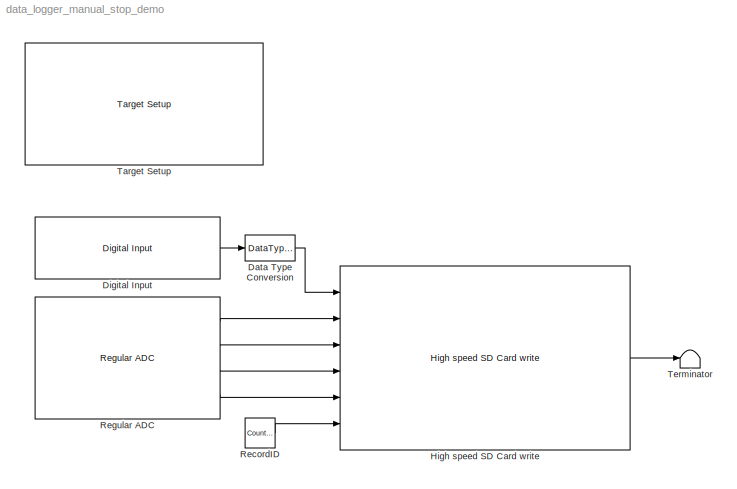
MODEL data_logger_manual_stop_demo
KIND model
CONFIG PreLoadFcn = waijung.modelPreload; % Required for working with Waijung Blockset. Do not remove.
BLOCK [DataTypeConversion] Data Type Conversion
  OutDataType = fixdt(1, 16)
  OutDataTypeMode = uint8
  OutDataTypeStr = uint8
  OutScaling = 2^0
  RndMeth = Floor
  SaturateOnIntegerOverflow = off
BLOCK [Reference] Digital Input  REF=stm32f4_io_lib/Digital Input
  Ports = [0, 1]
  SourceBlock = stm32f4_io_lib/Digital Input
  SourceType = stm32f4_digital_input
  bitbandingstr = \n#define DigitalInput_A0 Peripheral_BB(GPIOA->IDR, 0)  /* Output pin */
  blockid = DigitalInput
  cinputportlabel = In1, In2
  coutputportlabel = Out1, Out2
  enablecustomportlabel = off
  glabalinit = off
  pinstr = GPIO_Pin_0
  port = A
  porttype = None
  porttypestr = NOPULL
  sampletime = 0.01
  sampletimestr = 0.01
  speed = 100
  use_pin0 = on
  use_pin1 = off
  use_pin10 = off
  use_pin11 = off
  use_pin12 = off
  use_pin13 = off
  use_pin14 = off
  use_pin15 = off
  use_pin2 = off
  use_pin3 = off
  use_pin4 = off
  use_pin5 = off
  use_pin6 = off
  use_pin7 = off
  use_pin8 = off
  use_pin9 = off
  usedpinarray = [1  0  0  0  0  0  0  0  0  0  0  0  0  0  0  0]
BLOCK [Reference] High speed SD Card write  REF=stm32f4_sdio_lib/High speed SD Card write
  Ports = [6, 1]
  SourceBlock = stm32f4_sdio_lib/High speed SD Card write
  SourceType = stm32f4_hssdcard_write
  asciiformat = '%u,%f\\r\\n'
  asciiheader = Value1,Value2,value3\\n
  blockid = HighspeedSDCardwrite
  buffersize = 32768
  confstr = [\"262144000UL /* 256MB */\", \"128\"]
  datacount_double = 0
  datacount_float = 0
  datacount_int16_t = 0
  datacount_int32_t = 0
  datacount_int8_t = 0
  datacount_uint16_t = 4
  datacount_uint32_t = 1
  datacount_uint8_t = 0
  filesize = 12000000000
  gpio_pin_busy = 15
  gpio_pin_error = 14
  gpio_pin_success = 12
  gpio_sta_port = D
  inputtype = [6 3  5 5 5 5 7]
  limitsize = 250MB
  outputtype = [1 7]
  packetmode = Binary
  recordcount = 1000000000
  recordmode = Single
  recordsize = 12
  sampletime = -1
  sampletimestr = 1e-005
  sdoption = Format as FAT32 (Remove all existing files)
BLOCK [Reference] RecordID  REF=simulink/Sources/Counter\nFree-Running
  FunctionWithSeparateData = off
  NumBits = 32
  Ports = [0, 1]
  RTWMemSecDataConstants = Inherit from model
  RTWMemSecDataInternal = Inherit from model
  RTWMemSecDataParameters = Inherit from model
  RTWMemSecFuncExecute = Inherit from model
  RTWMemSecFuncInitTerm = Inherit from model
  ShowPortLabels = FromPortIcon
  SourceBlock = simulink/Sources/Counter\nFree-Running
  SourceType = Counter Free-Running
  SystemSampleTime = -1
  tsamp = -1
BLOCK [Reference] Regular ADC  REF=stm32f4_adc_lib/Regular ADC
  Ports = [0, 4]
  SourceBlock = stm32f4_adc_lib/Regular ADC
  SourceType = stm32f4_regular_adc
  adcmodule = 1
  blockid = RegularADC
  chsamplingtime = Auto
  chsamplingtimestr = ADC_SampleTime_480Cycles
  cinputportlabel = 0
  coutputportlabel = Out1, Out2
  enablecustomportlabel = off
  outputdatatype = Raw (uint16)
  pinstr = GPIO_Pin_4 | GPIO_Pin_5 | GPIO_Pin_6 | GPIO_Pin_7
  prescaler = 2
  prescalerstr = ADC_Prescaler_Div2
  read_an0 = off
  read_an1 = off
  read_an10 = off
  read_an11 = off
  read_an12 = off
  read_an13 = off
  read_an14 = off
  read_an15 = off
  read_an16 = off
  read_an17 = off
  read_an18 = off
  read_an2 = off
  read_an3 = off
  read_an4 = on
  read_an5 = on
  read_an6 = on
  read_an7 = on
  read_an8 = off
  read_an9 = off
  sampletime = 10e-6
  usedpinarray = [0  0  0  0  1  1  1  1  0  0  0  0  0  0  0  0  0  0  0]
  usedpinidarray = [4  5  6  7]
  usedpinidcount = 4
  usedportidarray = [0  0  0  0]
BLOCK [Reference] Target Setup  REF=stm32f4_device_config_lib/Target Setup
  Ports = []
  Priority = 100
  SourceBlock = stm32f4_device_config_lib/Target Setup
  SourceType = stm32f4_target_setup
  assemblercontrolstr = $(patsubst %, -I%, .) -mcpu=cortex-m4 -mthumb -mthumb-interwork -mfloat-abi=hard -mfpu=fpv4-sp-d16 -ffast-math -Wall -Wextra -Ofast -Wa,-amhls=$(<:.s=.lst) -D__STACK_SIZE=$(STACK_SIZE) -D__HEAP_SIZE=$(HEAP_SIZE)
  blockid = TargetSetup
  clockconfig = HSEOSC-8MHz
  compiler = GNU ARM
  compilercontrolstr = $(patsubst %, -I%, .) -mcpu=cortex-m4 -mthumb -mthumb-interwork -mfloat-abi=hard -mfpu=fpv4-sp-d16 -ffast-math -Wall -Wextra -Ofast
  editctrlstr = on
  enableautocompiledownload = on
  execprofile = None
  flashlength = 1024k
  flashorigin = 0x8000000
  fullchiperase = off
  hclk = 168000000
  heapsize = 0x200
  hseval = 8000000
  lastprofileruart = 1
  linkercontrolstr = -T$(LD_SCRIPT) -g -Wl,-Map=$(MAP),--cref,--no-warn-mismatch -mcpu=cortex-m4 -mthumb -mthumb-interwork -mfloat-abi=hard -mfpu=fpv4-sp-d16 -specs=nosys.specs
  manualsetsampletime = off
  mcu = STM32F417IG (LQFP176)
  mcustr = STM32F417IG
  previous_compiler = GNU ARM
  profilerbaud = 115200
  profilerinitstr = 1e-005,168000000,1680,115200,0
  profilertxpin = D8
  profileruart = 1
  programmerinterface = ST-Link
  ramlength = 128k
  ramorigin = 0x20000000
  runafterdownload = on
  sampletime = 1e-005
  showmemoryconfiguration = off
  stacksize = 0x400
  system_stm32f4xx_c_path = <path>
  systickreloadvalue = 1680
  useextram = off
BLOCK [Terminator] Terminator
LINE Data Type Conversion:1 -> High speed SD Card write:1
LINE Digital Input:1 -> Data Type Conversion:1
LINE High speed SD Card write:1 -> Terminator:1
LINE RecordID:1 -> High speed SD Card write:6
LINE Regular ADC:1 -> High speed SD Card write:2
LINE Regular ADC:2 -> High speed SD Card write:3
LINE Regular ADC:3 -> High speed SD Card write:4
LINE Regular ADC:4 -> High speed SD Card write:5
note: 1 file-system path scrubbed to <path> (not preserved elsewhere — flat text is the only slx artifact)
